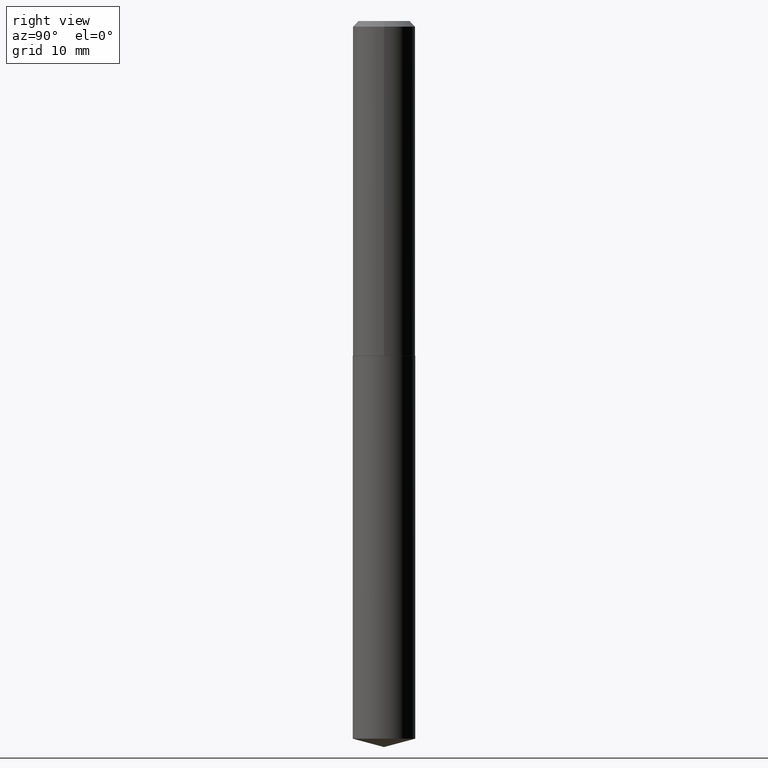
[diagram: clean part render]
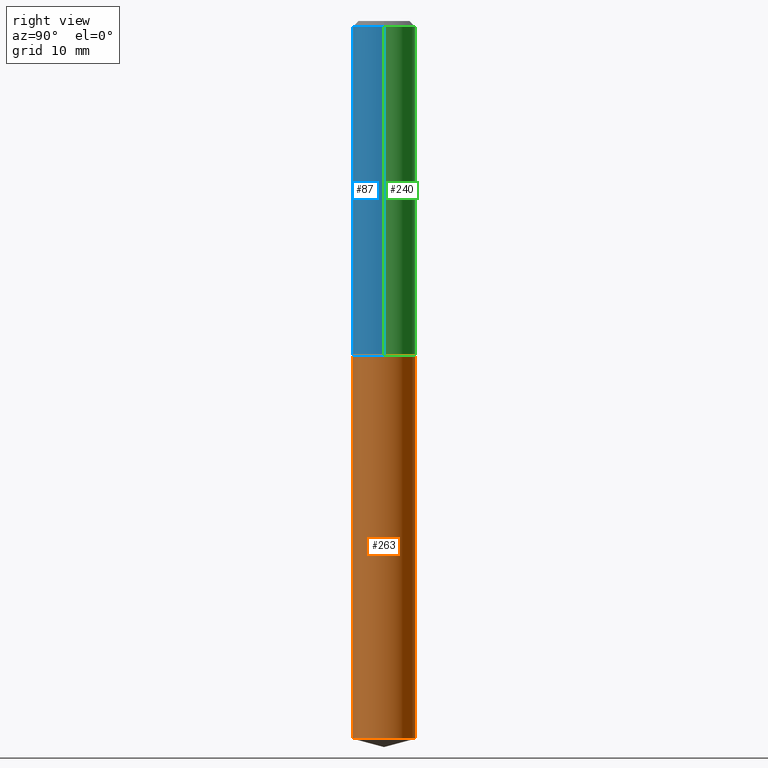
[diagram: same view with three faces highlighted in distinct colors, each labeled with its STEP entity id]
A machine part, right view with three faces highlighted in distinct colors.
Their STEP definitions:

[orange] entity #263 — the highlighted cylindrical surface (edge-blend (fillet) strip) has radius 4.3663 mm, axis along (-0, 0, 1).
#1 = DIRECTION ( 'NONE',  ( -6.982962677686266711E-15, -1.000000000000000000, 3.178415350394722068E-15 ) ) ;
#7 = EDGE_CURVE ( 'NONE', #296, #159, #184, .T. ) ;
#14 = AXIS2_PLACEMENT_3D ( 'NONE', #150, #94, #1 ) ;
#19 = ORIENTED_EDGE ( 'NONE', *, *, #7, .T. ) ;
#26 = AXIS2_PLACEMENT_3D ( 'NONE', #294, #89, #327 ) ;
#39 = CARTESIAN_POINT ( 'NONE',  ( 1.221422962771708835E-15, 0.1718999999999935302, -1.843800000000000328 ) ) ;
#49 = EDGE_LOOP ( 'NONE', ( #19, #192, #195, #383 ) ) ;
#63 = FACE_OUTER_BOUND ( 'NONE', #49, .T. ) ;
#67 = CARTESIAN_POINT ( 'NONE',  ( 1.221422962771708441E-15, 0.1718999999999861195, -3.953939533821090535 ) ) ;
#79 = VERTEX_POINT ( 'NONE', #268 ) ;
#84 = VECTOR ( 'NONE', #219, 39.37007874015748143 ) ;
#89 = DIRECTION ( 'NONE',  ( -2.445482673583201242E-29, 3.491461479939833844E-15, 1.000000000000000000 ) ) ;
#94 = DIRECTION ( 'NONE',  ( -2.445482673583201242E-29, 3.491461479939833844E-15, 1.000000000000000000 ) ) ;
#105 = EDGE_CURVE ( 'NONE', #79, #280, #363, .T. ) ;
#114 = CARTESIAN_POINT ( 'NONE',  ( 9.669265053646563538E-29, -1.380506419219352593E-14, -3.953939533821090091 ) ) ;
#121 = CYLINDRICAL_SURFACE ( 'NONE', #14, 0.1718999999999999695 ) ;
#123 = CARTESIAN_POINT ( 'NONE',  ( 1.221422962771656968E-15, 0.1718999999999935302, -1.843800000000000328 ) ) ;
#125 = VECTOR ( 'NONE', #364, 39.37007874015748143 ) ;
#140 = DIRECTION ( 'NONE',  ( -6.982962677686266711E-15, -1.000000000000000000, 3.178415350394722068E-15 ) ) ;
#150 = CARTESIAN_POINT ( 'NONE',  ( 4.508955384844154993E-29, -6.437593292558991362E-15, -1.843799999999999883 ) ) ;
#151 = AXIS2_PLACEMENT_3D ( 'NONE', #114, #174, #140 ) ;
#154 = LINE ( 'NONE', #123, #125 ) ;
#159 = VERTEX_POINT ( 'NONE', #67 ) ;
#174 = DIRECTION ( 'NONE',  ( -2.445482673583201242E-29, 3.491461479939833844E-15, 1.000000000000000000 ) ) ;
#184 = CIRCLE ( 'NONE', #151, 0.1718999999999999695 ) ;
#192 = ORIENTED_EDGE ( 'NONE', *, *, #202, .T. ) ;
#195 = ORIENTED_EDGE ( 'NONE', *, *, #105, .F. ) ;
#202 = EDGE_CURVE ( 'NONE', #159, #280, #154, .T. ) ;
#213 = CARTESIAN_POINT ( 'NONE',  ( -1.200371284294171620E-15, -0.1719000000000137363, -3.953939533821089647 ) ) ;
#219 = DIRECTION ( 'NONE',  ( -2.445482673583200962E-29, 3.491461479939833449E-15, 1.000000000000000000 ) ) ;
#245 = EDGE_CURVE ( 'NONE', #296, #79, #247, .T. ) ;
#247 = LINE ( 'NONE', #251, #84 ) ;
#251 = CARTESIAN_POINT ( 'NONE',  ( -1.200371284294223882E-15, -0.1719000000000064365, -1.843799999999999439 ) ) ;
#263 = ADVANCED_FACE ( 'NONE', ( #63 ), #121, .T. ) ;
#268 = CARTESIAN_POINT ( 'NONE',  ( -1.200371284294223882E-15, -0.1719000000000064365, -1.843799999999999439 ) ) ;
#280 = VERTEX_POINT ( 'NONE', #39 ) ;
#294 = CARTESIAN_POINT ( 'NONE',  ( 4.508955384844154993E-29, -6.437593292558991362E-15, -1.843799999999999883 ) ) ;
#296 = VERTEX_POINT ( 'NONE', #213 ) ;
#327 = DIRECTION ( 'NONE',  ( -6.982962677686266711E-15, -1.000000000000000000, 3.178415350394722068E-15 ) ) ;
#363 = CIRCLE ( 'NONE', #26, 0.1718999999999999695 ) ;
#364 = DIRECTION ( 'NONE',  ( -2.445482673583200962E-29, 3.491461479939833449E-15, 1.000000000000000000 ) ) ;
#383 = ORIENTED_EDGE ( 'NONE', *, *, #245, .F. ) ;

[blue] entity #87 — the highlighted cylindrical surface (edge-blend (fillet) strip) has radius 4.3663 mm, axis along (-0, 0, 1).
#40 = DIRECTION ( 'NONE',  ( 1.000000000000000000, -6.982962677686268288E-15, 0.000000000000000000 ) ) ;
#45 = AXIS2_PLACEMENT_3D ( 'NONE', #239, #236, #148 ) ;
#47 = ORIENTED_EDGE ( 'NONE', *, *, #233, .F. ) ;
#71 = AXIS2_PLACEMENT_3D ( 'NONE', #95, #272, #306 ) ;
#73 = EDGE_LOOP ( 'NONE', ( #47, #106, #209, #349 ) ) ;
#78 = CARTESIAN_POINT ( 'NONE',  ( -0.1719000000000000250, -2.051055209092595308E-15, -0.03125000000000021511 ) ) ;
#82 = FACE_OUTER_BOUND ( 'NONE', #73, .T. ) ;
#87 = ADVANCED_FACE ( 'NONE', ( #82 ), #299, .T. ) ;
#91 = VECTOR ( 'NONE', #301, 39.37007874015748143 ) ;
#95 = CARTESIAN_POINT ( 'NONE',  ( 7.642090019328604414E-31, -1.091087918388490513E-16, -0.03125000000000021511 ) ) ;
#106 = ORIENTED_EDGE ( 'NONE', *, *, #385, .T. ) ;
#130 = LINE ( 'NONE', #308, #339 ) ;
#135 = DIRECTION ( 'NONE',  ( -2.445468806185136877E-29, 3.491481338843145188E-15, 1.000000000000000000 ) ) ;
#148 = DIRECTION ( 'NONE',  ( 1.000000000000000000, -6.982962677686265922E-15, 4.876176775795935793E-29 ) ) ;
#167 = CIRCLE ( 'NONE', #71, 0.1719000000000000250 ) ;
#190 = CARTESIAN_POINT ( 'NONE',  ( 4.507732650441062191E-29, -6.435847551889570648E-15, -1.843299999999999939 ) ) ;
#209 = ORIENTED_EDGE ( 'NONE', *, *, #328, .T. ) ;
#210 = VERTEX_POINT ( 'NONE', #359 ) ;
#222 = AXIS2_PLACEMENT_3D ( 'NONE', #190, #369, #40 ) ;
#224 = VERTEX_POINT ( 'NONE', #336 ) ;
#228 = VERTEX_POINT ( 'NONE', #243 ) ;
#233 = EDGE_CURVE ( 'NONE', #210, #318, #333, .T. ) ;
#236 = DIRECTION ( 'NONE',  ( -2.445468806185136597E-29, 3.491481338843145583E-15, 1.000000000000000000 ) ) ;
#239 = CARTESIAN_POINT ( 'NONE',  ( 0.000000000000000000, 0.000000000000000000, 0.000000000000000000 ) ) ;
#243 = CARTESIAN_POINT ( 'NONE',  ( 0.1719000000000002470, -7.636218836183841467E-15, -1.843299999999999939 ) ) ;
#250 = CIRCLE ( 'NONE', #222, 0.1719000000000002470 ) ;
#271 = EDGE_CURVE ( 'NONE', #318, #224, #167, .T. ) ;
#272 = DIRECTION ( 'NONE',  ( -2.445468806185136597E-29, 3.491481338843145583E-15, 1.000000000000000000 ) ) ;
#299 = CYLINDRICAL_SURFACE ( 'NONE', #45, 0.1719000000000001638 ) ;
#301 = DIRECTION ( 'NONE',  ( -2.445468806185136877E-29, 3.491481338843145188E-15, 1.000000000000000000 ) ) ;
#306 = DIRECTION ( 'NONE',  ( 1.000000000000000000, -6.982962677686265922E-15, 0.000000000000000000 ) ) ;
#308 = CARTESIAN_POINT ( 'NONE',  ( 0.1719000000000001638, -1.200371284294270227E-15, 8.382147877593221486E-30 ) ) ;
#318 = VERTEX_POINT ( 'NONE', #78 ) ;
#328 = EDGE_CURVE ( 'NONE', #228, #224, #130, .T. ) ;
#333 = LINE ( 'NONE', #360, #91 ) ;
#336 = CARTESIAN_POINT ( 'NONE',  ( 0.1719000000000000250, -1.309480076133118342E-15, -0.03125000000000021511 ) ) ;
#339 = VECTOR ( 'NONE', #135, 39.37007874015748143 ) ;
#349 = ORIENTED_EDGE ( 'NONE', *, *, #271, .F. ) ;
#359 = CARTESIAN_POINT ( 'NONE',  ( -0.1719000000000002470, -5.214424589117955687E-15, -1.843299999999999939 ) ) ;
#360 = CARTESIAN_POINT ( 'NONE',  ( -0.1719000000000001638, 1.221422962771613383E-15, -8.455649420148191587E-30 ) ) ;
#369 = DIRECTION ( 'NONE',  ( -2.445468806185136597E-29, 3.491481338843145583E-15, 1.000000000000000000 ) ) ;
#385 = EDGE_CURVE ( 'NONE', #210, #228, #250, .T. ) ;

[green] entity #240 — the highlighted cylindrical surface (edge-blend (fillet) strip) has radius 4.3663 mm, axis along (-0, 0, 1).
#6 = DIRECTION ( 'NONE',  ( 1.000000000000000000, -6.982962677686265922E-15, 4.876176775795935793E-29 ) ) ;
#9 = DIRECTION ( 'NONE',  ( -2.445468806185136597E-29, 3.491481338843145583E-15, 1.000000000000000000 ) ) ;
#12 = DIRECTION ( 'NONE',  ( -2.445468806185136597E-29, 3.491481338843145583E-15, 1.000000000000000000 ) ) ;
#37 = FACE_OUTER_BOUND ( 'NONE', #312, .T. ) ;
#64 = CARTESIAN_POINT ( 'NONE',  ( 4.507732650441062191E-29, -6.435847551889570648E-15, -1.843299999999999939 ) ) ;
#78 = CARTESIAN_POINT ( 'NONE',  ( -0.1719000000000000250, -2.051055209092595308E-15, -0.03125000000000021511 ) ) ;
#91 = VECTOR ( 'NONE', #301, 39.37007874015748143 ) ;
#122 = DIRECTION ( 'NONE',  ( -2.445468806185136597E-29, 3.491481338843145583E-15, 1.000000000000000000 ) ) ;
#128 = CARTESIAN_POINT ( 'NONE',  ( 7.642090019328604414E-31, -1.091087918388490513E-16, -0.03125000000000021511 ) ) ;
#130 = LINE ( 'NONE', #308, #339 ) ;
#135 = DIRECTION ( 'NONE',  ( -2.445468806185136877E-29, 3.491481338843145188E-15, 1.000000000000000000 ) ) ;
#138 = AXIS2_PLACEMENT_3D ( 'NONE', #277, #122, #6 ) ;
#155 = CYLINDRICAL_SURFACE ( 'NONE', #138, 0.1719000000000001638 ) ;
#160 = ORIENTED_EDGE ( 'NONE', *, *, #233, .T. ) ;
#198 = AXIS2_PLACEMENT_3D ( 'NONE', #64, #12, #317 ) ;
#210 = VERTEX_POINT ( 'NONE', #359 ) ;
#224 = VERTEX_POINT ( 'NONE', #336 ) ;
#228 = VERTEX_POINT ( 'NONE', #243 ) ;
#232 = ORIENTED_EDGE ( 'NONE', *, *, #309, .T. ) ;
#233 = EDGE_CURVE ( 'NONE', #210, #318, #333, .T. ) ;
#240 = ADVANCED_FACE ( 'NONE', ( #37 ), #155, .T. ) ;
#243 = CARTESIAN_POINT ( 'NONE',  ( 0.1719000000000002470, -7.636218836183841467E-15, -1.843299999999999939 ) ) ;
#277 = CARTESIAN_POINT ( 'NONE',  ( 0.000000000000000000, 0.000000000000000000, 0.000000000000000000 ) ) ;
#278 = AXIS2_PLACEMENT_3D ( 'NONE', #128, #9, #374 ) ;
#301 = DIRECTION ( 'NONE',  ( -2.445468806185136877E-29, 3.491481338843145188E-15, 1.000000000000000000 ) ) ;
#308 = CARTESIAN_POINT ( 'NONE',  ( 0.1719000000000001638, -1.200371284294270227E-15, 8.382147877593221486E-30 ) ) ;
#309 = EDGE_CURVE ( 'NONE', #228, #210, #365, .T. ) ;
#312 = EDGE_LOOP ( 'NONE', ( #232, #160, #316, #340 ) ) ;
#316 = ORIENTED_EDGE ( 'NONE', *, *, #338, .F. ) ;
#317 = DIRECTION ( 'NONE',  ( 1.000000000000000000, -6.982962677686268288E-15, 0.000000000000000000 ) ) ;
#318 = VERTEX_POINT ( 'NONE', #78 ) ;
#321 = CIRCLE ( 'NONE', #278, 0.1719000000000000250 ) ;
#328 = EDGE_CURVE ( 'NONE', #228, #224, #130, .T. ) ;
#333 = LINE ( 'NONE', #360, #91 ) ;
#336 = CARTESIAN_POINT ( 'NONE',  ( 0.1719000000000000250, -1.309480076133118342E-15, -0.03125000000000021511 ) ) ;
#338 = EDGE_CURVE ( 'NONE', #224, #318, #321, .T. ) ;
#339 = VECTOR ( 'NONE', #135, 39.37007874015748143 ) ;
#340 = ORIENTED_EDGE ( 'NONE', *, *, #328, .F. ) ;
#359 = CARTESIAN_POINT ( 'NONE',  ( -0.1719000000000002470, -5.214424589117955687E-15, -1.843299999999999939 ) ) ;
#360 = CARTESIAN_POINT ( 'NONE',  ( -0.1719000000000001638, 1.221422962771613383E-15, -8.455649420148191587E-30 ) ) ;
#365 = CIRCLE ( 'NONE', #198, 0.1719000000000002470 ) ;
#374 = DIRECTION ( 'NONE',  ( 1.000000000000000000, -6.982962677686265922E-15, 0.000000000000000000 ) ) ;